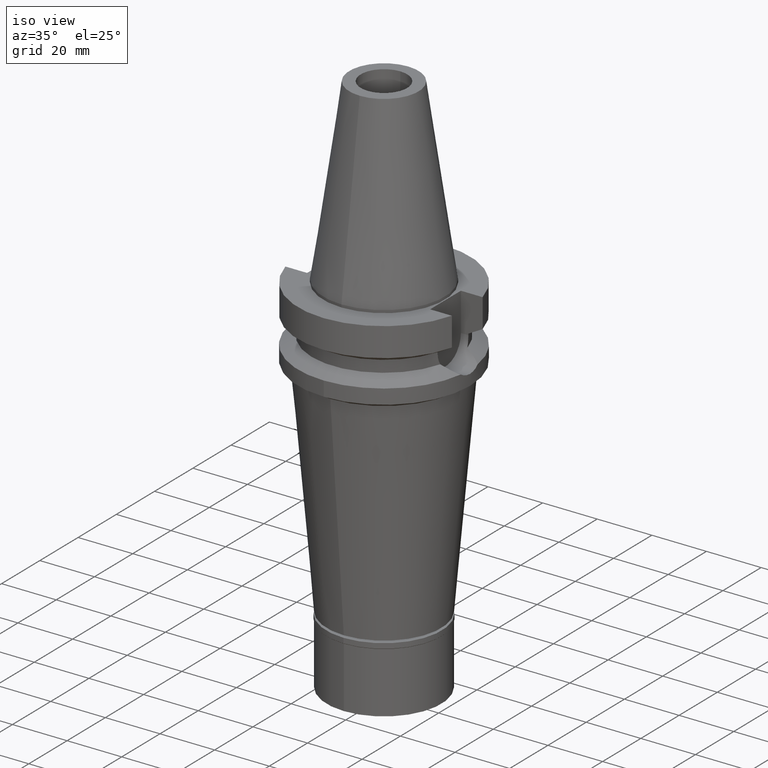
[diagram: clean part render]
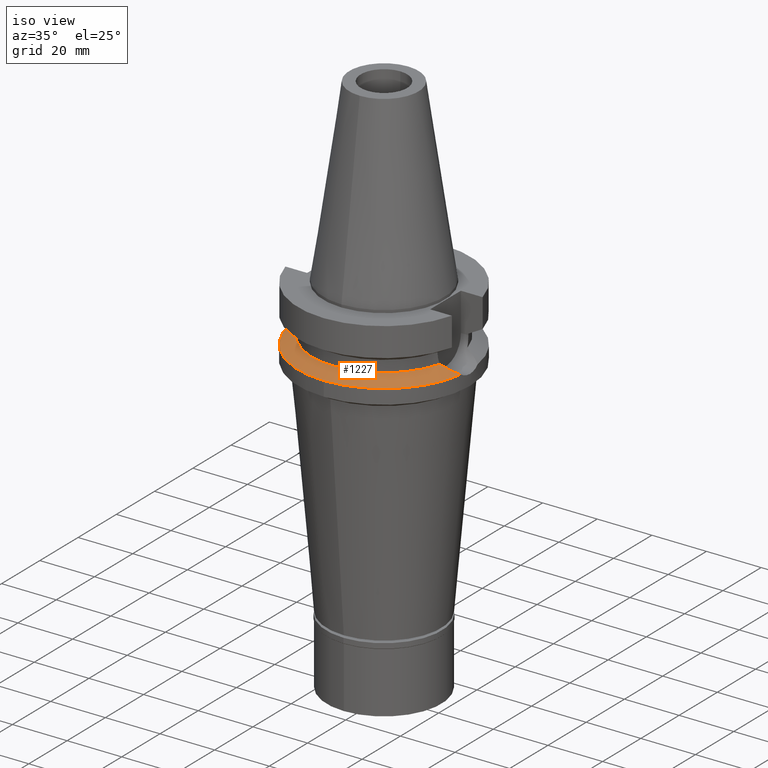
[diagram: same view with one face highlighted and labeled with its STEP entity id]
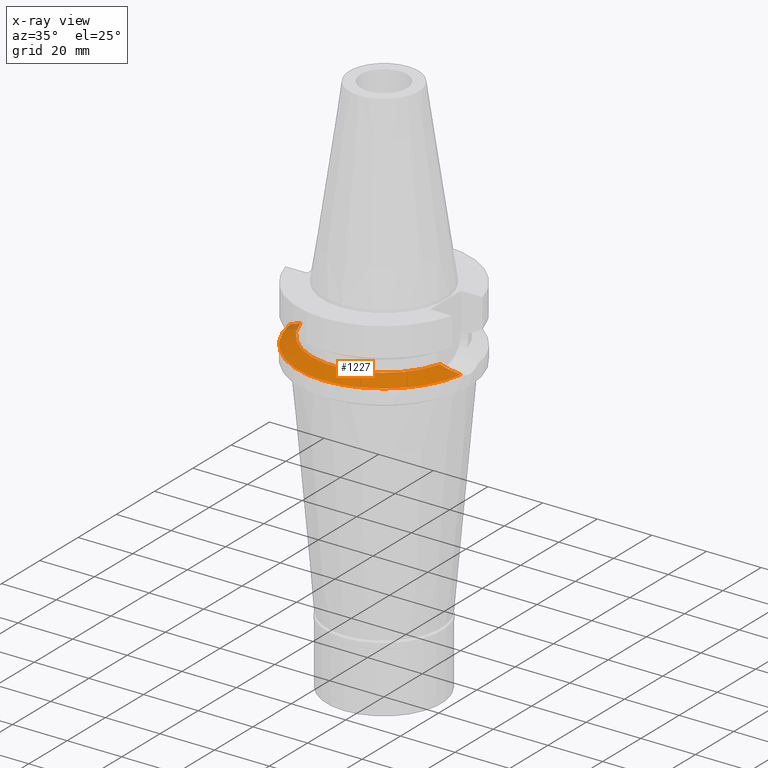
[diagram: x-ray of the same camera — body ghosted, the highlighted face saturated]
A machine part, iso view. The second image highlights one B-rep face of the part: STEP entity #1227.
The next image is the same camera in x-ray: the body ghosted, the highlighted face saturated — about 2% of this face is hidden behind the body in this view.
In plain terms, the highlighted conical surface has half-angle 60 deg.
Its self-contained STEP definition (entity closure, byte-faithful):
#32 = CARTESIAN_POINT ( 'NONE',  ( 0.0000000000000000000, 0.0000000000000000000, -21.63449434733000132 ) ) ;
#50 = ORIENTED_EDGE ( 'NONE', *, *, #1151, .F. ) ;
#86 = CARTESIAN_POINT ( 'NONE',  ( 0.0000000000000000000, 0.0000000000000000000, -21.63449434733000132 ) ) ;
#101 = DIRECTION ( 'NONE',  ( 0.0000000000000000000, 0.0000000000000000000, -1.000000000000000000 ) ) ;
#264 = EDGE_CURVE ( 'NONE', #2580, #471, #1489, .T. ) ;
#267 = CARTESIAN_POINT ( 'NONE',  ( 0.0000000000000000000, 0.0000000000000000000, -20.19111867435999841 ) ) ;
#296 = DIRECTION ( 'NONE',  ( -0.9634623335000935818, -0.2678438573619981722, 0.0000000000000000000 ) ) ;
#311 = CARTESIAN_POINT ( 'NONE',  ( -28.64685006895864205, -5.975925807261488032, -20.34367013729207230 ) ) ;
#319 = EDGE_LOOP ( 'NONE', ( #50, #1450, #3082, #3086, #2219 ) ) ;
#329 = CARTESIAN_POINT ( 'NONE',  ( 30.52692851706648725, -4.980241495948961372, -21.30252931660415783 ) ) ;
#424 = CIRCLE ( 'NONE', #2762, 31.50000000000000000 ) ;
#471 = VERTEX_POINT ( 'NONE', #1054 ) ;
#548 = CARTESIAN_POINT ( 'NONE',  ( 29.74281439779301905, -5.456444700670593839, -20.90301002696076793 ) ) ;
#596 = CARTESIAN_POINT ( 'NONE',  ( -26.67053313806426118, -6.784830754443381018, -19.33278896498108423 ) ) ;
#599 = CARTESIAN_POINT ( 'NONE',  ( 28.22605010989666852, -6.163902321964490838, -20.12839937610636198 ) ) ;
#740 = CARTESIAN_POINT ( 'NONE',  ( 0.0000000000000000000, -31.50000000000000000, -21.63449434733000132 ) ) ;
#831 = CARTESIAN_POINT ( 'NONE',  ( -28.53972380971194411, -6.024806342835604234, -20.28893525442234136 ) ) ;
#835 = CARTESIAN_POINT ( 'NONE',  ( 27.58252772857274593, -6.427692731334309073, -19.79946426435851237 ) ) ;
#955 = FACE_OUTER_BOUND ( 'NONE', #319, .T. ) ;
#966 = AXIS2_PLACEMENT_3D ( 'NONE', #2312, #2715, #296 ) ;
#1036 = CARTESIAN_POINT ( 'NONE',  ( 26.16673474707192781, -6.923316299190685363, -19.07396383760122305 ) ) ;
#1054 = CARTESIAN_POINT ( 'NONE',  ( 25.53175183775000079, -7.097862220092999941, -18.74774300138999905 ) ) ;
#1130 = AXIS2_PLACEMENT_3D ( 'NONE', #267, #1942, #2384 ) ;
#1151 = EDGE_CURVE ( 'NONE', #2179, #1273, #424, .T. ) ;
#1227 = ADVANCED_FACE ( 'NONE', ( #955 ), #2515, .T. ) ;
#1273 = VERTEX_POINT ( 'NONE', #3093 ) ;
#1309 = CARTESIAN_POINT ( 'NONE',  ( -29.52783911874264788, -5.539547320758622995, -20.79349938190209102 ) ) ;
#1333 = CARTESIAN_POINT ( 'NONE',  ( 31.17899877608999759, -4.485536235554000051, -21.63449434733000132 ) ) ;
#1450 = ORIENTED_EDGE ( 'NONE', *, *, #1843, .F. ) ;
#1489 = CIRCLE ( 'NONE', #966, 26.49999999999998224 ) ;
#1526 = CARTESIAN_POINT ( 'NONE',  ( -29.75859872526250527, -5.412583475626504992, -20.91118741911544632 ) ) ;
#1547 = CARTESIAN_POINT ( 'NONE',  ( 28.71213667082915677, -5.946452077870582720, -20.37665572232084443 ) ) ;
#1571 = CARTESIAN_POINT ( 'NONE',  ( -25.53175183775000079, -7.097862220092999941, -18.74774300138999905 ) ) ;
#1591 = CARTESIAN_POINT ( 'NONE',  ( 28.59231485495118008, -6.001749595602642984, -20.31547028656329701 ) ) ;
#1818 = CARTESIAN_POINT ( 'NONE',  ( -29.16631150937245209, -5.725915909535016723, -20.60897776839927076 ) ) ;
#1821 = CIRCLE ( 'NONE', #2745, 31.50000000000001421 ) ;
#1843 = EDGE_CURVE ( 'NONE', #2616, #2179, #1821, .T. ) ;
#1899 = EDGE_CURVE ( 'NONE', #471, #2616, #2725, .T. ) ;
#1942 = DIRECTION ( 'NONE',  ( 0.0000000000000000000, 0.0000000000000000000, -1.000000000000000000 ) ) ;
#2007 = CARTESIAN_POINT ( 'NONE',  ( -28.75958898712248768, -5.923650864675019889, -20.40126694870788171 ) ) ;
#2054 = CARTESIAN_POINT ( 'NONE',  ( -28.59005983879417911, -6.001932992441059156, -20.31465446851108680 ) ) ;
#2113 = DIRECTION ( 'NONE',  ( 0.0000000000000000000, 0.0000000000000000000, -1.000000000000000000 ) ) ;
#2179 = VERTEX_POINT ( 'NONE', #740 ) ;
#2199 = DIRECTION ( 'NONE',  ( 0.0000000000000000000, -1.000000000000000000, 0.0000000000000000000 ) ) ;
#2219 = ORIENTED_EDGE ( 'NONE', *, *, #2451, .F. ) ;
#2312 = CARTESIAN_POINT ( 'NONE',  ( 0.0000000000000000000, 0.0000000000000000000, -18.74774300138999905 ) ) ;
#2332 = CARTESIAN_POINT ( 'NONE',  ( 26.75880158344285675, -6.731834701491425932, -19.37775920198340884 ) ) ;
#2384 = DIRECTION ( 'NONE',  ( 0.0000000000000000000, -1.000000000000000000, 0.0000000000000000000 ) ) ;
#2451 = EDGE_CURVE ( 'NONE', #1273, #2580, #2923, .T. ) ;
#2488 = CARTESIAN_POINT ( 'NONE',  ( -31.17899877608999759, -4.485536235554000051, -21.63449434733000132 ) ) ;
#2515 = CONICAL_SURFACE ( 'NONE', #1130, 29.00000000000000000, 1.047197551196400456 ) ;
#2536 = DIRECTION ( 'NONE',  ( 0.9898094849552905306, -0.1423979757318985240, 0.0000000000000000000 ) ) ;
#2550 = CARTESIAN_POINT ( 'NONE',  ( -28.54932507657186136, -6.020456235442351201, -20.29384110740646108 ) ) ;
#2554 = CARTESIAN_POINT ( 'NONE',  ( 28.34992652795446944, -6.110163340102685581, -20.19167659833906470 ) ) ;
#2566 = CARTESIAN_POINT ( 'NONE',  ( -25.53175183775000079, -7.097862220092999941, -18.74774300138999905 ) ) ;
#2580 = VERTEX_POINT ( 'NONE', #2566 ) ;
#2616 = VERTEX_POINT ( 'NONE', #2815 ) ;
#2715 = DIRECTION ( 'NONE',  ( 0.0000000000000000000, 0.0000000000000000000, 1.000000000000000000 ) ) ;
#2725 = B_SPLINE_CURVE_WITH_KNOTS ( 'NONE', 3,
 ( #3026, #1036, #2332, #835, #2784, #599, #2554, #1591, #1547, #548, #329, #1333 ),
 .UNSPECIFIED., .F., .F.,
 ( 4, 2, 2, 2, 2, 4 ),
 ( 0.0000000000000000000, 0.2500000000000004441, 0.3750000000000006661, 0.4375000000000013323, 0.5000000000000019984, 1.000000000000000000 ),
 .UNSPECIFIED. ) ;
#2732 = CARTESIAN_POINT ( 'NONE',  ( -27.67094555700580827, -6.417732708859404944, -19.84502095766646335 ) ) ;
#2745 = AXIS2_PLACEMENT_3D ( 'NONE', #86, #101, #2536 ) ;
#2762 = AXIS2_PLACEMENT_3D ( 'NONE', #32, #2113, #2199 ) ;
#2779 = CARTESIAN_POINT ( 'NONE',  ( -30.42010114564134327, -5.025043811179144448, -21.24830897952079667 ) ) ;
#2784 = CARTESIAN_POINT ( 'NONE',  ( 27.84637409204497160, -6.323483586464969441, -19.93438592651295238 ) ) ;
#2796 = CARTESIAN_POINT ( 'NONE',  ( -28.98170065478975488, -5.818080378276435205, -20.51472055564508779 ) ) ;
#2815 = CARTESIAN_POINT ( 'NONE',  ( 31.17899877608999759, -4.485536235554000051, -21.63449434733000132 ) ) ;
#2923 = B_SPLINE_CURVE_WITH_KNOTS ( 'NONE', 3,
 ( #2488, #2977, #2779, #1526, #1309, #1818, #2796, #2007, #311, #2054, #3022, #2550, #831, #2732, #596, #1571 ),
 .UNSPECIFIED., .F., .F.,
 ( 4, 2, 2, 1, 1, 1, 1, 2, 2, 4 ),
 ( 0.0000000000000000000, 0.2500000000000567324, 0.3750000000000847655, 0.4375000000000984768, 0.4687500000001051381, 0.4843750000001078027, 0.4921875000001088574, 0.4960937500001093570, 0.5000000000001098011, 1.000000000000000000 ),
 .UNSPECIFIED. ) ;
#2977 = CARTESIAN_POINT ( 'NONE',  ( -30.82006756031951866, -4.757846094975608509, -21.45176463312213855 ) ) ;
#3022 = CARTESIAN_POINT ( 'NONE',  ( -28.56563100349170981, -6.013050719029273239, -20.30217265364873924 ) ) ;
#3026 = CARTESIAN_POINT ( 'NONE',  ( 25.53175183775000079, -7.097862220092999941, -18.74774300138999905 ) ) ;
#3082 = ORIENTED_EDGE ( 'NONE', *, *, #1899, .F. ) ;
#3086 = ORIENTED_EDGE ( 'NONE', *, *, #264, .F. ) ;
#3093 = CARTESIAN_POINT ( 'NONE',  ( -31.17899877608999759, -4.485536235554000051, -21.63449434733000132 ) ) ;